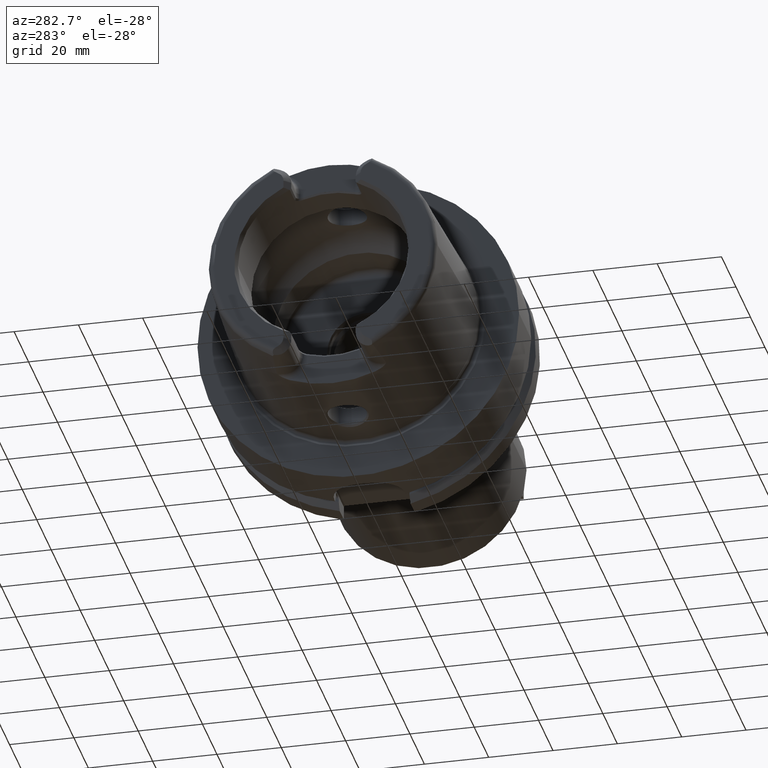
[diagram: clean part render]
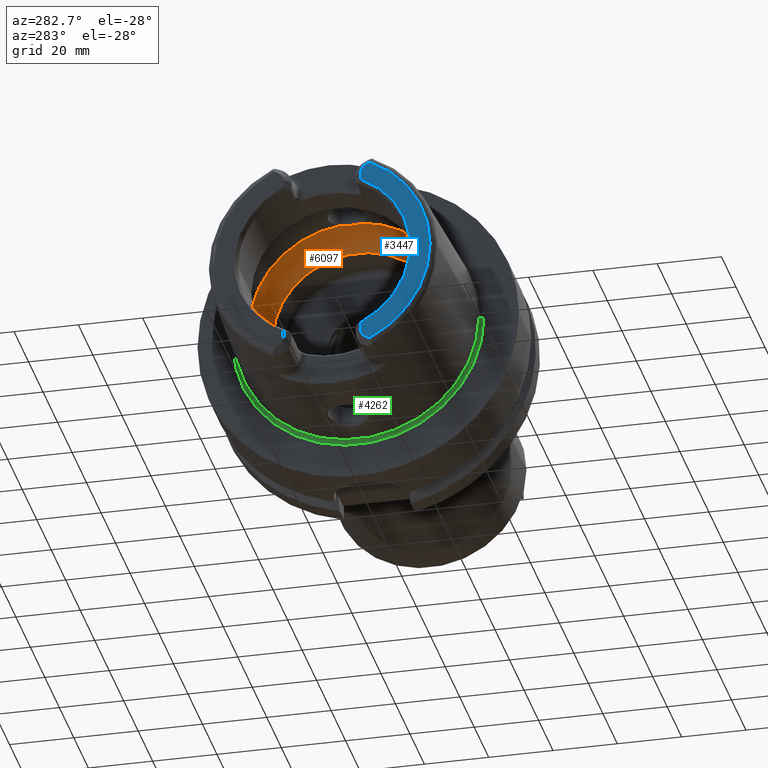
[diagram: same view with three faces highlighted in distinct colors, each labeled with its STEP entity id]
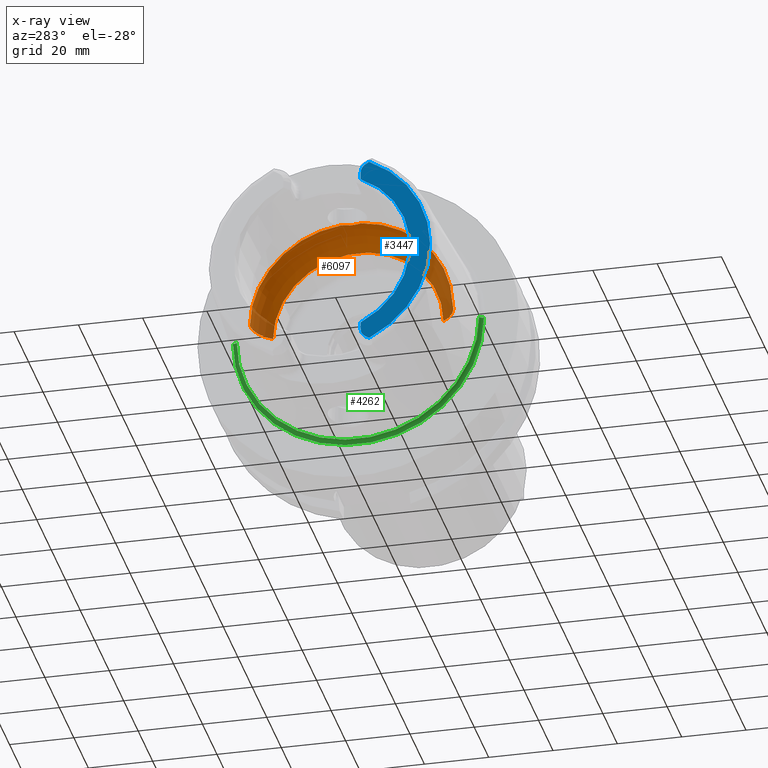
[diagram: x-ray of the same camera — body ghosted, the three highlighted faces saturated]
A machine part, auxiliary view with three faces highlighted in distinct colors.
The next image is the same camera in x-ray (body ghosted, the three faces saturated) — at least one of them is partly hidden behind the body in this view.
Their STEP definitions:

[orange] entity #6097 — the highlighted toroidal blend (fillet) surface has major radius 19.5 mm and minor (blend) radius 12 mm.
#2196=CARTESIAN_POINT('',(-9.E0,0.E0,3.147008518506E1));
#2197=CARTESIAN_POINT('',(-9.E0,2.141252053900E-1,3.147008518506E1));
#2198=CARTESIAN_POINT('',(-9.022897579641E0,6.436731047292E-1,
3.146736073712E1));
#2199=CARTESIAN_POINT('',(-9.127427069178E0,1.286248325661E0,3.145454181001E1));
#2200=CARTESIAN_POINT('',(-9.301031145484E0,1.913730198969E0,3.143197920586E1));
#2201=CARTESIAN_POINT('',(-9.539946842554E0,2.515068696018E0,3.139832080387E1));
#2202=CARTESIAN_POINT('',(-9.738529982809E0,2.891645116602E0,3.136752560017E1));
#2203=CARTESIAN_POINT('',(-9.846794344809E0,3.073185883624E0,3.134972932139E1));
#2205=CARTESIAN_POINT('',(-9.846794344809E0,-3.073185883624E0,
3.134972932139E1));
#2206=CARTESIAN_POINT('',(-9.738534471789E0,-2.891652643851E0,
3.136752486228E1));
#2207=CARTESIAN_POINT('',(-9.539946477828E0,-2.515078628379E0,
3.139832107651E1));
#2208=CARTESIAN_POINT('',(-9.300974895981E0,-1.913573808680E0,
3.143198691417E1));
#2209=CARTESIAN_POINT('',(-9.127396838585E0,-1.286102505522E0,
3.145454553504E1));
#2210=CARTESIAN_POINT('',(-9.022886850943E0,-6.435548392987E-1,
3.146736203025E1));
#2211=CARTESIAN_POINT('',(-9.E0,-2.140793620984E-1,3.147008518506E1));
#2212=CARTESIAN_POINT('',(-9.E0,0.E0,3.147008518506E1));
#2214=CARTESIAN_POINT('',(-1.E-1,0.E0,0.E0));
#2215=DIRECTION('',(1.E0,0.E0,0.E0));
#2216=DIRECTION('',(0.E0,1.E0,0.E0));
#2217=AXIS2_PLACEMENT_3D('',#2214,#2215,#2216);
#2243=CARTESIAN_POINT('',(-9.846794344809E0,0.E0,0.E0));
#2244=DIRECTION('',(1.E0,0.E0,0.E0));
#2245=DIRECTION('',(0.E0,1.E0,0.E0));
#2246=AXIS2_PLACEMENT_3D('',#2243,#2244,#2245);
#2248=CARTESIAN_POINT('',(-9.846794344809E0,0.E0,0.E0));
#2249=DIRECTION('',(1.E0,0.E0,0.E0));
#2250=DIRECTION('',(0.E0,-9.756145662299E-2,9.952295022665E-1));
#2251=AXIS2_PLACEMENT_3D('',#2248,#2249,#2250);
#2352=CARTESIAN_POINT('',(-9.846794344809E0,1.95E1,0.E0));
#2353=DIRECTION('',(0.E0,0.E0,1.E0));
#2354=DIRECTION('',(8.122328620674E-1,5.833333333333E-1,0.E0));
#2355=AXIS2_PLACEMENT_3D('',#2352,#2353,#2354);
#2362=CARTESIAN_POINT('',(-9.846794344809E0,-1.95E1,0.E0));
#2363=DIRECTION('',(0.E0,0.E0,-1.E0));
#2364=DIRECTION('',(8.122328620674E-1,-5.833333333333E-1,0.E0));
#2365=AXIS2_PLACEMENT_3D('',#2362,#2363,#2364);
#2867=CARTESIAN_POINT('',(-1.E-1,2.65E1,0.E0));
#2868=VERTEX_POINT('',#2867);
#2869=CARTESIAN_POINT('',(-9.846794344809E0,3.15E1,0.E0));
#2870=VERTEX_POINT('',#2869);
#2879=CARTESIAN_POINT('',(-1.E-1,-2.65E1,0.E0));
#2880=VERTEX_POINT('',#2879);
#2881=CARTESIAN_POINT('',(-9.846794344809E0,-3.15E1,0.E0));
#2882=VERTEX_POINT('',#2881);
#3048=VERTEX_POINT('',#2196);
#3049=VERTEX_POINT('',#2203);
#3050=VERTEX_POINT('',#2205);
#6078=CARTESIAN_POINT('',(-9.846794344809E0,0.E0,0.E0));
#6079=DIRECTION('',(1.E0,0.E0,0.E0));
#6080=DIRECTION('',(0.E0,-1.E0,0.E0));
#6081=AXIS2_PLACEMENT_3D('',#6078,#6079,#6080);
#6082=TOROIDAL_SURFACE('',#6081,1.95E1,1.2E1);
#6083=ORIENTED_EDGE('',*,*,#6055,.F.);
#6084=ORIENTED_EDGE('',*,*,#5781,.F.);
#6086=ORIENTED_EDGE('',*,*,#6085,.T.);
#6088=ORIENTED_EDGE('',*,*,#6087,.F.);
#6090=ORIENTED_EDGE('',*,*,#6089,.F.);
#6092=ORIENTED_EDGE('',*,*,#6091,.T.);
#6094=ORIENTED_EDGE('',*,*,#6093,.T.);
#6095=EDGE_LOOP('',(#6083,#6084,#6086,#6088,#6090,#6092,#6094));
#6096=FACE_OUTER_BOUND('',#6095,.F.);
#6097=ADVANCED_FACE('',(#6096),#6082,.F.);
#2204=B_SPLINE_CURVE_WITH_KNOTS('',3,(#2196,#2197,#2198,#2199,#2200,#2201,#2202,
#2203),.UNSPECIFIED.,.F.,.F.,(4,1,1,1,1,4),(0.E0,2.E-1,4.E-1,6.E-1,8.E-1,1.E0),
.UNSPECIFIED.);
#2213=B_SPLINE_CURVE_WITH_KNOTS('',3,(#2205,#2206,#2207,#2208,#2209,#2210,#2211,
#2212),.UNSPECIFIED.,.F.,.F.,(4,1,1,1,1,4),(0.E0,2.E-1,4.E-1,6.E-1,8.E-1,1.E0),
.UNSPECIFIED.);
#2218=CIRCLE('',#2217,2.65E1);
#2247=CIRCLE('',#2246,3.15E1);
#2252=CIRCLE('',#2251,3.15E1);
#2356=CIRCLE('',#2355,1.2E1);
#2366=CIRCLE('',#2365,1.2E1);
#5781=EDGE_CURVE('',#3050,#3048,#2213,.T.);
#6055=EDGE_CURVE('',#3048,#3049,#2204,.T.);
#6085=EDGE_CURVE('',#3050,#2882,#2252,.T.);
#6087=EDGE_CURVE('',#2880,#2882,#2366,.T.);
#6089=EDGE_CURVE('',#2868,#2880,#2218,.T.);
#6091=EDGE_CURVE('',#2868,#2870,#2356,.T.);
#6093=EDGE_CURVE('',#2870,#3049,#2247,.T.);

[blue] entity #3447 — the highlighted planar face has unit normal (1, 0, 0).
#126=DIRECTION('',(0.E0,0.E0,-1.E0));
#127=VECTOR('',#126,2.370180025047E0);
#128=CARTESIAN_POINT('',(-5.E1,-1.201E1,-2.458981997495E1));
#129=LINE('',#128,#127);
#130=DIRECTION('',(0.E0,0.E0,1.E0));
#131=VECTOR('',#130,2.370180025047E0);
#132=CARTESIAN_POINT('',(-5.E1,-1.201E1,2.458981997495E1));
#133=LINE('',#132,#131);
#134=CARTESIAN_POINT('',(-5.E1,-1.501E1,2.696E1));
#135=DIRECTION('',(1.E0,0.E0,0.E0));
#136=DIRECTION('',(0.E0,1.E0,-1.657933050107E-14));
#137=AXIS2_PLACEMENT_3D('',#134,#135,#136);
#139=DIRECTION('',(0.E0,8.533905854017E-1,-5.212720103245E-1));
#140=VECTOR('',#139,1.392150953463E0);
#141=CARTESIAN_POINT('',(-5.E1,-1.463423248617E1,3.024586108239E1));
#142=LINE('',#141,#140);
#143=DIRECTION('',(0.E0,8.533905854017E-1,5.212720103245E-1));
#144=VECTOR('',#143,1.392150953463E0);
#145=CARTESIAN_POINT('',(-5.E1,-1.463423248617E1,-3.024586108239E1));
#146=LINE('',#145,#144);
#147=CARTESIAN_POINT('',(-5.E1,-1.501E1,-2.696E1));
#148=DIRECTION('',(-1.E0,0.E0,0.E0));
#149=DIRECTION('',(0.E0,1.E0,0.E0));
#150=AXIS2_PLACEMENT_3D('',#147,#148,#149);
#197=CARTESIAN_POINT('',(-5.E1,0.E0,0.E0));
#198=DIRECTION('',(1.E0,0.E0,0.E0));
#199=DIRECTION('',(0.E0,-4.388653384185E-1,8.985528447091E-1));
#200=AXIS2_PLACEMENT_3D('',#197,#198,#199);
#359=CARTESIAN_POINT('',(-5.E1,0.E0,0.E0));
#360=DIRECTION('',(-1.E0,0.E0,0.E0));
#361=DIRECTION('',(0.E0,-4.355401503799E-1,-9.001693048572E-1));
#362=AXIS2_PLACEMENT_3D('',#359,#360,#361);
#2934=CARTESIAN_POINT('',(-5.E1,-1.201E1,2.458981997495E1));
#2935=CARTESIAN_POINT('',(-5.E1,-1.201E1,2.696E1));
#2936=VERTEX_POINT('',#2934);
#2937=VERTEX_POINT('',#2935);
#2938=CARTESIAN_POINT('',(-5.E1,-1.344618396903E1,2.952017175621E1));
#2939=VERTEX_POINT('',#2938);
#2940=CARTESIAN_POINT('',(-5.E1,-1.463423248617E1,3.024586108239E1));
#2941=VERTEX_POINT('',#2940);
#3027=CARTESIAN_POINT('',(-5.E1,-1.201E1,-2.458981997495E1));
#3028=CARTESIAN_POINT('',(-5.E1,-1.201E1,-2.696E1));
#3029=VERTEX_POINT('',#3027);
#3030=VERTEX_POINT('',#3028);
#3031=CARTESIAN_POINT('',(-5.E1,-1.344618396903E1,-2.952017175621E1));
#3032=VERTEX_POINT('',#3031);
#3033=CARTESIAN_POINT('',(-5.E1,-1.463423248617E1,-3.024586108239E1));
#3034=VERTEX_POINT('',#3033);
#3425=CARTESIAN_POINT('',(-5.E1,0.E0,0.E0));
#3426=DIRECTION('',(1.E0,0.E0,0.E0));
#3427=DIRECTION('',(0.E0,-1.E0,0.E0));
#3428=AXIS2_PLACEMENT_3D('',#3425,#3426,#3427);
#3429=PLANE('',#3428);
#3431=ORIENTED_EDGE('',*,*,#3430,.F.);
#3433=ORIENTED_EDGE('',*,*,#3432,.F.);
#3435=ORIENTED_EDGE('',*,*,#3434,.T.);
#3437=ORIENTED_EDGE('',*,*,#3436,.T.);
#3438=ORIENTED_EDGE('',*,*,#3389,.F.);
#3440=ORIENTED_EDGE('',*,*,#3439,.F.);
#3442=ORIENTED_EDGE('',*,*,#3441,.T.);
#3444=ORIENTED_EDGE('',*,*,#3443,.F.);
#3445=EDGE_LOOP('',(#3431,#3433,#3435,#3437,#3438,#3440,#3442,#3444));
#3446=FACE_OUTER_BOUND('',#3445,.F.);
#3447=ADVANCED_FACE('',(#3446),#3429,.F.);
#138=CIRCLE('',#137,3.E0);
#151=CIRCLE('',#150,3.E0);
#201=CIRCLE('',#200,2.736602540378E1);
#363=CIRCLE('',#362,3.360019156306E1);
#3389=EDGE_CURVE('',#2941,#2939,#142,.T.);
#3430=EDGE_CURVE('',#3029,#3030,#129,.T.);
#3432=EDGE_CURVE('',#2936,#3029,#201,.T.);
#3434=EDGE_CURVE('',#2936,#2937,#133,.T.);
#3436=EDGE_CURVE('',#2937,#2939,#138,.T.);
#3439=EDGE_CURVE('',#3034,#2941,#363,.T.);
#3441=EDGE_CURVE('',#3034,#3032,#146,.T.);
#3443=EDGE_CURVE('',#3030,#3032,#151,.T.);

[green] entity #4262 — the highlighted toroidal blend (fillet) surface has major radius 38.6823 mm and minor (blend) radius 1 mm.
#867=CARTESIAN_POINT('',(-7.005712886803E-1,0.E0,0.E0));
#868=DIRECTION('',(-1.E0,0.E0,0.E0));
#869=DIRECTION('',(0.E0,1.E0,0.E0));
#870=AXIS2_PLACEMENT_3D('',#867,#868,#869);
#882=CARTESIAN_POINT('',(-7.005712886803E-1,3.868225E1,0.E0));
#883=DIRECTION('',(0.E0,0.E0,-1.E0));
#884=DIRECTION('',(9.304175679820E-1,3.665012267243E-1,0.E0));
#885=AXIS2_PLACEMENT_3D('',#882,#883,#884);
#887=CARTESIAN_POINT('',(-7.005712886803E-1,-3.868225E1,0.E0));
#888=DIRECTION('',(0.E0,0.E0,1.E0));
#889=DIRECTION('',(9.304175679820E-1,-3.665012267243E-1,0.E0));
#890=AXIS2_PLACEMENT_3D('',#887,#888,#889);
#892=CARTESIAN_POINT('',(2.298462793018E-1,0.E0,0.E0));
#893=DIRECTION('',(-1.E0,0.E0,0.E0));
#894=DIRECTION('',(0.E0,1.E0,0.E0));
#895=AXIS2_PLACEMENT_3D('',#892,#893,#894);
#2831=CARTESIAN_POINT('',(2.298462793018E-1,-3.904875122672E1,0.E0));
#2832=CARTESIAN_POINT('',(-7.005712886803E-1,-3.768225E1,0.E0));
#2833=VERTEX_POINT('',#2831);
#2834=VERTEX_POINT('',#2832);
#2839=CARTESIAN_POINT('',(2.298462793018E-1,3.904875122672E1,0.E0));
#2840=CARTESIAN_POINT('',(-7.005712886803E-1,3.768225E1,0.E0));
#2841=VERTEX_POINT('',#2839);
#2842=VERTEX_POINT('',#2840);
#4250=CARTESIAN_POINT('',(-7.005712886803E-1,0.E0,0.E0));
#4251=DIRECTION('',(-1.E0,0.E0,0.E0));
#4252=DIRECTION('',(0.E0,-1.E0,0.E0));
#4253=AXIS2_PLACEMENT_3D('',#4250,#4251,#4252);
#4254=TOROIDAL_SURFACE('',#4253,3.868225E1,1.E0);
#4255=ORIENTED_EDGE('',*,*,#4243,.T.);
#4256=ORIENTED_EDGE('',*,*,#4217,.T.);
#4257=ORIENTED_EDGE('',*,*,#4240,.F.);
#4259=ORIENTED_EDGE('',*,*,#4258,.F.);
#4260=EDGE_LOOP('',(#4255,#4256,#4257,#4259));
#4261=FACE_OUTER_BOUND('',#4260,.F.);
#4262=ADVANCED_FACE('',(#4261),#4254,.F.);
#871=CIRCLE('',#870,3.768225E1);
#886=CIRCLE('',#885,1.E0);
#891=CIRCLE('',#890,1.E0);
#896=CIRCLE('',#895,3.904875122672E1);
#4217=EDGE_CURVE('',#2842,#2834,#871,.T.);
#4240=EDGE_CURVE('',#2833,#2834,#891,.T.);
#4243=EDGE_CURVE('',#2841,#2842,#886,.T.);
#4258=EDGE_CURVE('',#2841,#2833,#896,.T.);